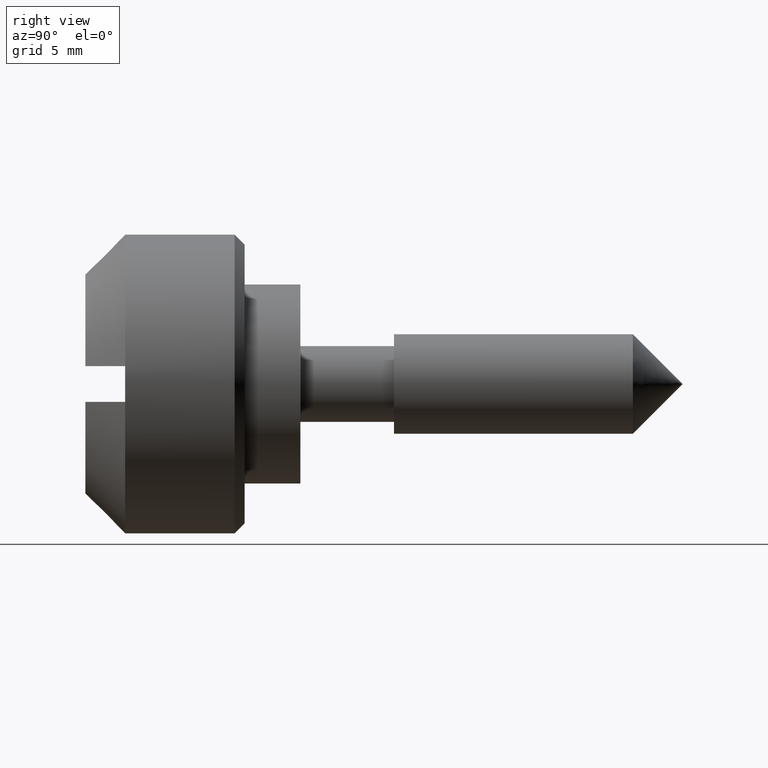
[diagram: clean part render]
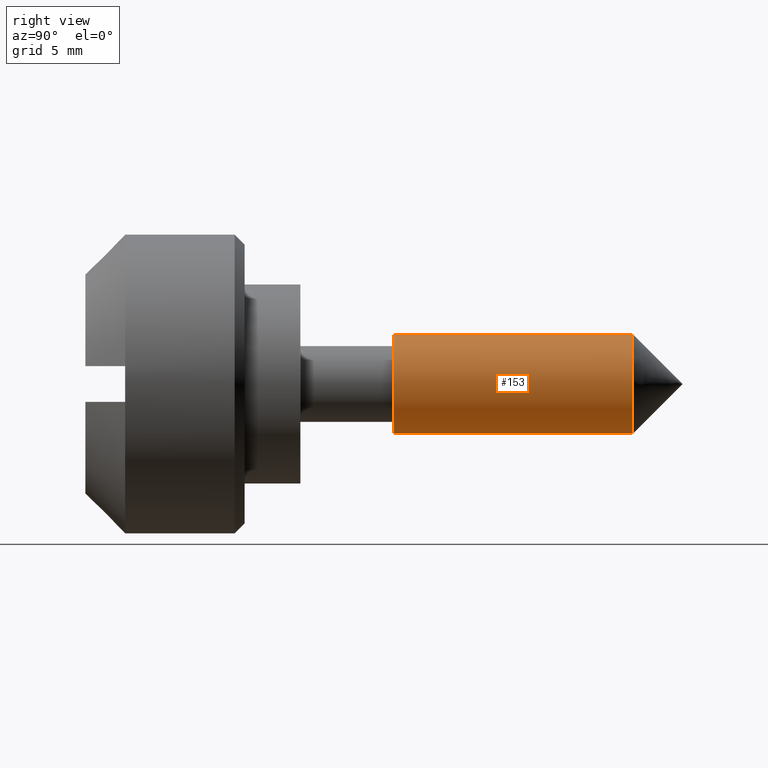
[diagram: same view with one face highlighted and labeled with its STEP entity id]
A machine part, right view. The second image highlights one B-rep face of the part: STEP entity #153.
In plain terms, the highlighted cylindrical surface (partial cylindrical patch) has radius 2.5 mm, axis along (0, 1, 0).
Its self-contained STEP definition (entity closure, byte-faithful):
#153=ADVANCED_FACE('',(#570),#569,.T.);
#569=CYLINDRICAL_SURFACE('',#828,2.50000000000E+00);
#570=FACE_OUTER_BOUND('',#829,.T.);
#825=CARTESIAN_POINT('',(0.00000000000E+00,0.00000000000E+00,0.00000000000E+00));
#826=DIRECTION('',(1.00000000000E+00,-0.00000000000E+00,-0.00000000000E+00));
#827=DIRECTION('',(0.00000000000E+00,0.00000000000E+00,-1.00000000000E+00));
#828=AXIS2_PLACEMENT_3D('',#825,#826,#827);
#829=EDGE_LOOP('',(#1022,#1023,#1024,#1025));
#1022=ORIENTED_EDGE('',*,*,#1101,.F.);
#1023=ORIENTED_EDGE('',*,*,#1122,.T.);
#1024=ORIENTED_EDGE('',*,*,#1108,.T.);
#1025=ORIENTED_EDGE('',*,*,#1123,.F.);
#1101=EDGE_CURVE('',#1622,#1621,#1629,.T.);
#1108=EDGE_CURVE('',#1674,#1675,#1676,.T.);
#1122=EDGE_CURVE('',#1622,#1674,#1763,.T.);
#1123=EDGE_CURVE('',#1621,#1675,#1769,.T.);
#1621=VERTEX_POINT('',#2084);
#1622=VERTEX_POINT('',#2085);
#1629=CIRCLE('',#2093,2.50000000000E+00);
#1674=VERTEX_POINT('',#2121);
#1675=VERTEX_POINT('',#2122);
#1676=CIRCLE('',#2126,2.50000000000E+00);
#1763=(BOUNDED_CURVE() B_SPLINE_CURVE(1,(#2162,#2163),.UNSPECIFIED.,.F.,.F.) B_SPLINE_CURVE_WITH_KNOTS((2,2),(8.33333343261E-02,9.16666667006E-01),.UNSPECIFIED.) CURVE() GEOMETRIC_REPRESENTATION_ITEM() RATIONAL_B_SPLINE_CURVE((1.00000000000E+00,1.00000000000E+00)) REPRESENTATION_ITEM('') );
#1769=(BOUNDED_CURVE() B_SPLINE_CURVE(1,(#2164,#2165),.UNSPECIFIED.,.F.,.F.) B_SPLINE_CURVE_WITH_KNOTS((2,2),(8.33333333333E-02,9.16666666667E-01),.UNSPECIFIED.) CURVE() GEOMETRIC_REPRESENTATION_ITEM() RATIONAL_B_SPLINE_CURVE((7.50000000000E-01,7.50000000000E-01)) REPRESENTATION_ITEM('') );
#2084=CARTESIAN_POINT('',(5.50000000000E+00,0.00000000000E+00,2.50000000000E+00));
#2085=CARTESIAN_POINT('',(5.50000000000E+00,1.48029736617E-16,-2.50000000000E+00));
#2090=CARTESIAN_POINT('',(5.50000000000E+00,0.00000000000E+00,0.00000000000E+00));
#2091=DIRECTION('',(-1.00000000000E+00,0.00000000000E+00,0.00000000000E+00));
#2092=DIRECTION('',(0.00000000000E+00,-1.22460635382E-16,1.00000000000E+00));
#2093=AXIS2_PLACEMENT_3D('',#2090,#2091,#2092);
#2121=CARTESIAN_POINT('',(1.75000000000E+01,1.48029736617E-16,-2.50000000000E+00));
#2122=CARTESIAN_POINT('',(1.75000000000E+01,0.00000000000E+00,2.50000000000E+00));
#2123=CARTESIAN_POINT('',(1.75000000000E+01,0.00000000000E+00,0.00000000000E+00));
#2124=DIRECTION('',(-1.00000000000E+00,0.00000000000E+00,0.00000000000E+00));
#2125=DIRECTION('',(0.00000000000E+00,-1.22460635382E-16,1.00000000000E+00));
#2126=AXIS2_PLACEMENT_3D('',#2123,#2124,#2125);
#2162=CARTESIAN_POINT('',(5.50000001430E+00,0.00000000000E+00,-2.50000000000E+00));
#2163=CARTESIAN_POINT('',(1.75000000049E+01,0.00000000000E+00,-2.50000000000E+00));
#2164=CARTESIAN_POINT('',(5.50000000000E+00,-1.48029736617E-16,2.50000000000E+00));
#2165=CARTESIAN_POINT('',(1.75000000000E+01,-1.48029736617E-16,2.50000000000E+00));